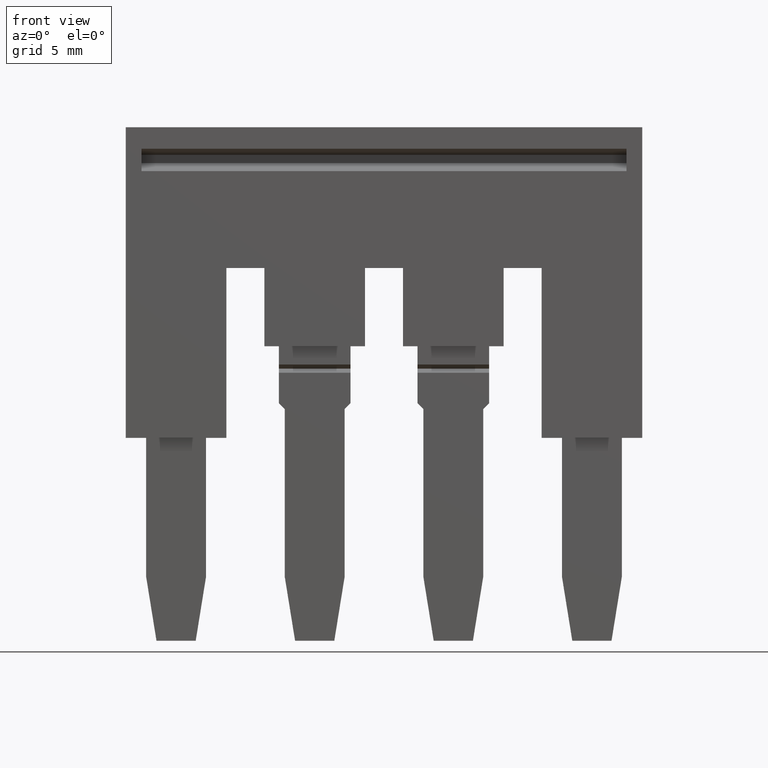
[diagram: clean part render]
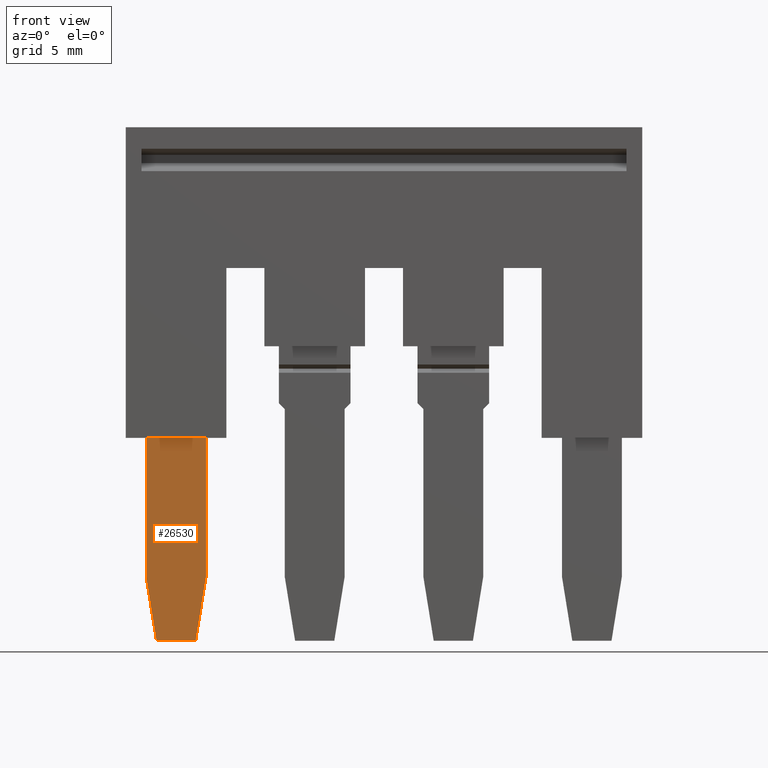
[diagram: same view with one face highlighted and labeled with its STEP entity id]
A machine part, front view. The second image highlights one B-rep face of the part: STEP entity #26530.
In plain terms, the highlighted planar face has unit normal (0, 1, 0).
Its self-contained STEP definition (entity closure, byte-faithful):
#15980=CARTESIAN_POINT('',(4.90716722169511,48.2714705882236,
-115.025882352948));
#15990=DIRECTION('',(-1.,1.22464679914735E-16,-7.49879891330929E-33));
#16000=DIRECTION('',(-1.22464679914735E-16,-1.,6.12323399573677E-17));
#16010=AXIS2_PLACEMENT_3D('',#15980,#15990,#16000);
#16020=PLANE('',#16010);
#17070=CARTESIAN_POINT('',(4.9071672216951,-32.1500000022958,
57.5831890519638));
#17080=VERTEX_POINT('',#17070);
#17130=CARTESIAN_POINT('',(4.9071672216951,-12.605124,54.4280274188145))
;
#17140=DIRECTION('',(-1.11022302462516E-16,-0.987219178105449,
0.159368423411924));
#17150=VECTOR('',#17140,1.);
#17160=LINE('',#17130,#17150);
#17170=CARTESIAN_POINT('',(4.9071672216951,-29.2807420505011,
57.1199999990351));
#17180=VERTEX_POINT('',#17170);
#17190=EDGE_CURVE('',#17180,#17080,#17160,.T.);
#19010=CARTESIAN_POINT('',(4.9071672216951,-23.0750000000004,
57.1199999990351));
#19020=VERTEX_POINT('',#19010);
#19050=CARTESIAN_POINT('',(4.9071672216951,-23.0750000000004,47.024984))
;
#19060=DIRECTION('',(7.49879891330929E-33,0.,-1.));
#19070=VECTOR('',#19060,1.);
#19080=LINE('',#19050,#19070);
#19090=CARTESIAN_POINT('',(4.9071672216951,-23.0750000000004,
59.7999999999964));
#19100=VERTEX_POINT('',#19090);
#19110=EDGE_CURVE('',#19100,#19020,#19080,.T.);
#25380=CARTESIAN_POINT('',(4.90716722171458,-32.1500000022956,
56.2597341592187));
#25390=DIRECTION('',(8.57252759403273E-16,1.44960956186225E-13,-1.));
#25400=VECTOR('',#25390,1.);
#25410=LINE('',#25380,#25400);
#25420=CARTESIAN_POINT('',(4.9071672216951,-32.150000002296,
59.3368109480383));
#25430=VERTEX_POINT('',#25420);
#25440=EDGE_CURVE('',#25430,#17080,#25410,.T.);
#26100=CARTESIAN_POINT('',(4.9071672216951,-14.7145836302073,
59.7999999999964));
#26110=DIRECTION('',(-1.22464679914735E-16,-1.,6.12323399573676E-17));
#26120=VECTOR('',#26110,1.);
#26130=LINE('',#26100,#26120);
#26140=CARTESIAN_POINT('',(4.9071672216951,-29.2807420565132,
59.7999999999964));
#26150=VERTEX_POINT('',#26140);
#26160=EDGE_CURVE('',#19100,#26150,#26130,.T.);
#26350=ORIENTED_EDGE('',*,*,#19110,.F.);
#26360=CARTESIAN_POINT('',(4.90716722171459,-14.7145836324971,
57.1199999990351));
#26370=DIRECTION('',(2.88230901147957E-27,1.,9.11930314421364E-17));
#26380=VECTOR('',#26370,1.);
#26390=LINE('',#26360,#26380);
#26400=EDGE_CURVE('',#17180,#19020,#26390,.T.);
#26410=ORIENTED_EDGE('',*,*,#26400,.T.);
#26420=ORIENTED_EDGE('',*,*,#17190,.F.);
#26430=ORIENTED_EDGE('',*,*,#25440,.T.);
#26440=CARTESIAN_POINT('',(4.9071672216951,-14.7145836302073,
62.1514390269647));
#26450=DIRECTION('',(1.11022302462516E-16,0.987219178105449,
0.159368423411924));
#26460=VECTOR('',#26450,1.);
#26470=LINE('',#26440,#26460);
#26480=EDGE_CURVE('',#25430,#26150,#26470,.T.);
#26490=ORIENTED_EDGE('',*,*,#26480,.F.);
#26500=ORIENTED_EDGE('',*,*,#26160,.T.);
#26510=EDGE_LOOP('',(#26500,#26490,#26430,#26420,#26410,#26350));
#26520=FACE_OUTER_BOUND('',#26510,.T.);
#26530=ADVANCED_FACE('',(#26520),#16020,.F.);